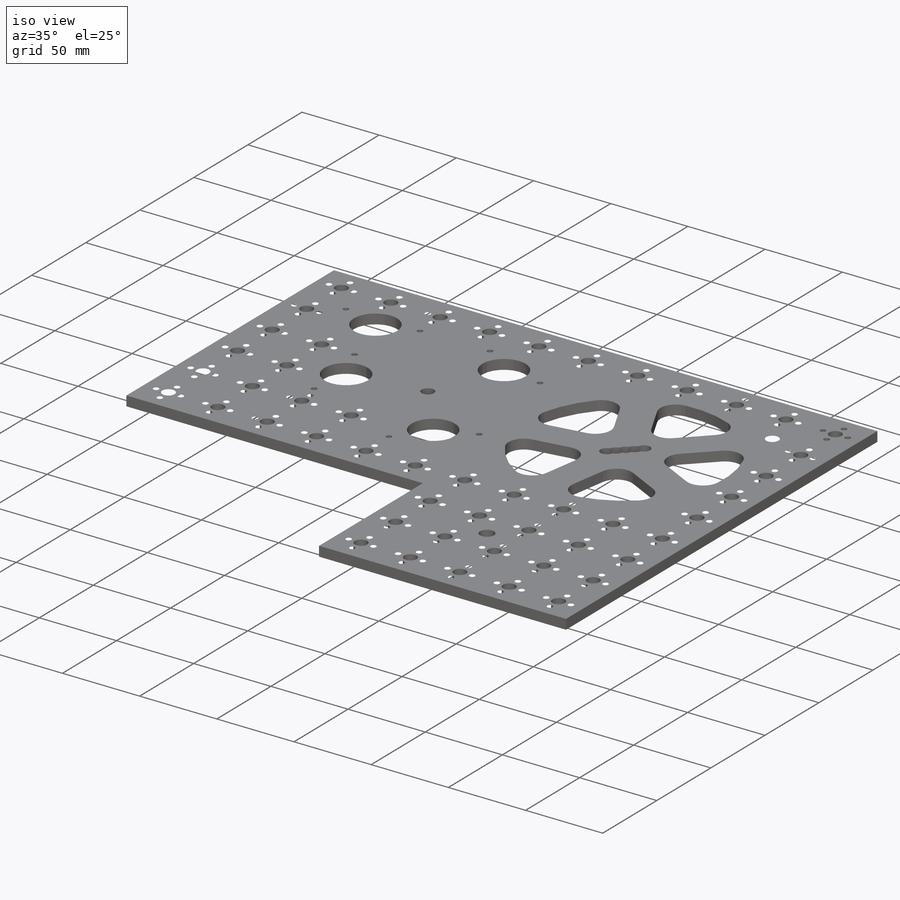
[diagram: iso view]
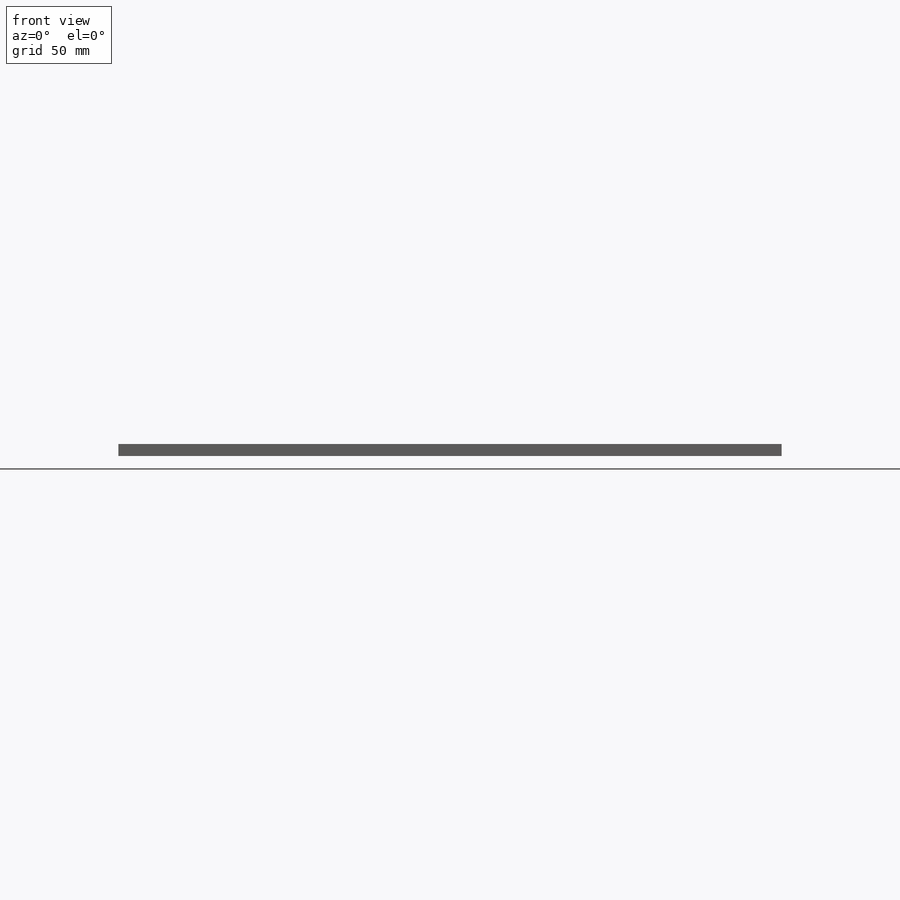
[diagram: front view]
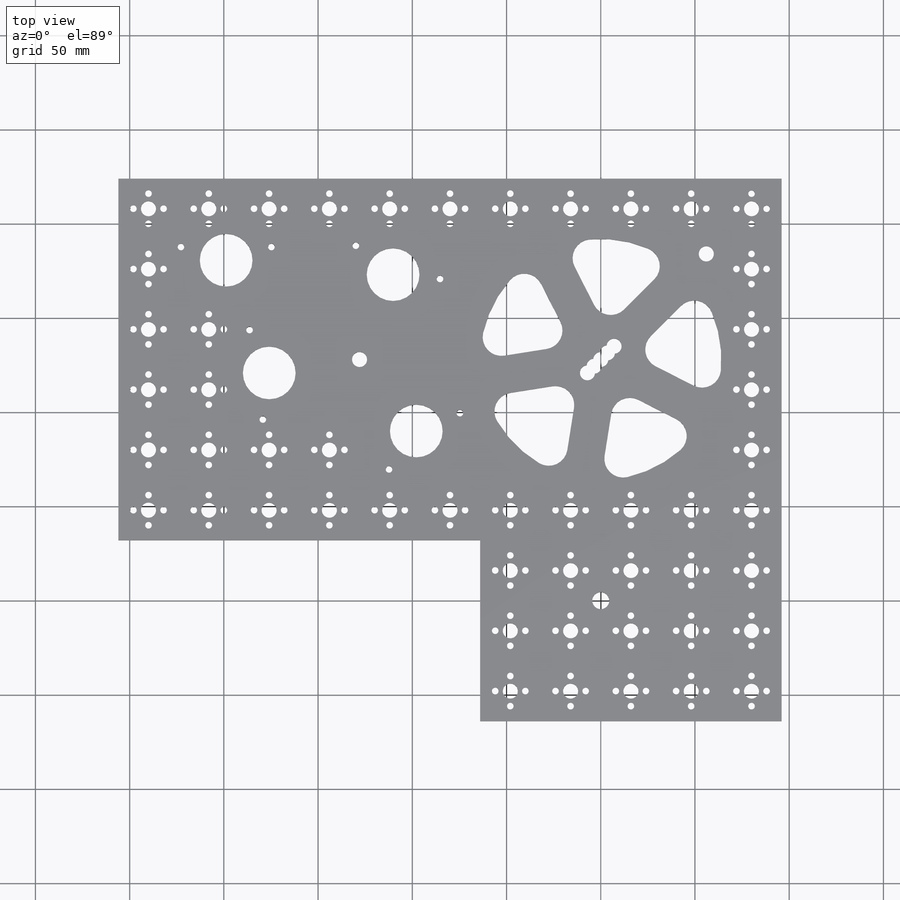
[diagram: top view]
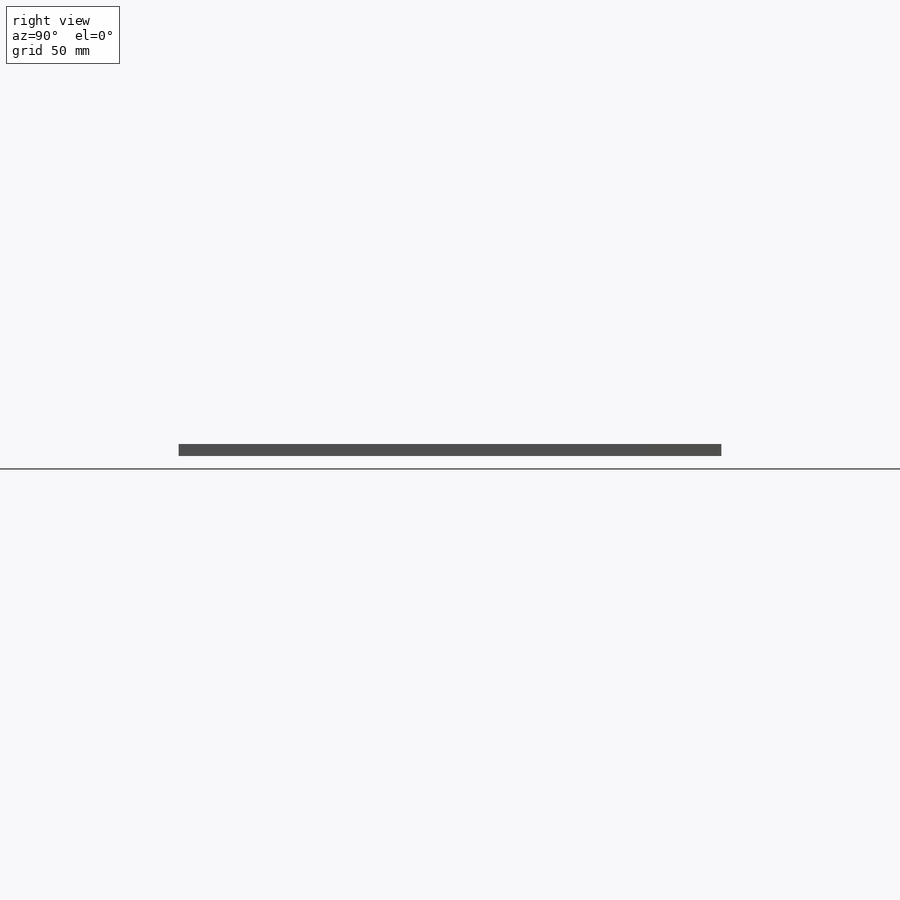
[diagram: right view]
SOLIDWORKS PART (.sldprt)
format: sldprt  version: not decoded by parser v0  size: 734,720 bytes
history: native  units: mm
features: sketch x10, cut_extrude x7, pattern_linear x3, material x1, extrude x1, fillet x1, pattern_circular x1 (+13 scaffold rows collapsed)
feature tree (37):
  scaffold x13  (default folders/planes/origin — collapsed)
  material  "Material <not specified>"
  sketch  "Sketch1"  dims[c1.D1=~16.170142mm c1.D2=~129.361138mm c1.D3=32.0mm c1.D4=64.0mm c1.D8=100.0mm c2.D3=32.0mm c2.D12=54.4mm c2.D5=~40.818521mm c3.D5=120.0deg c3.D6=~39.792612mm c4.D6=120.0deg c4.D7=128.0mm c4.D3=48.0mm c4.D9=80.0mm c4.D5=~28.054637mm c5.D5=120.0deg c5.D6=~20.53926mm c6.D6=120.0deg c6.D10=48.0mm c6.D11=6.5mm c6.D5=48.0mm c7.D5=120.0deg c7.D6=~13.471944mm c8.D6=120.0deg c8.D10=48.0mm]
  sketch  "Sketch2"  dims[D7=76.2mm D1=96.0mm D2=96.0mm D3=288.0mm D4=352.0mm D5=96.0mm D6=64.0mm]
  sketch  "Sketch3"  dims[D1=8.0mm D2=15.0mm]
  extrude  "Boss-Extrude1"  Depth=6.35mm
  sketch  "Sketch4"  dims[c1.D1=15.0mm c1.D2=8.0mm c1.D3=9.0mm c2.D1=28.0mm c2.D4=12.0mm c3.D1=28.0mm c3.D4=~28.593649mm c4.D4=45.0deg c4.D5=20.0mm c4.D6=4.0mm c5.D4=45.0deg]
  cut_extrude  "Cut-Extrude1"  [1 undecoded]
  cut_extrude  "Cut-Extrude6"  [1 undecoded]
  sketch  "Sketch4<3>"
  pattern_linear  "LPattern3"  Count1=3 Count2=3 Spacing1=5mm Spacing2=5mm
  sketch  "Sketch5"  dims[D3=3.5mm D1=48.0mm D2=7.0mm]
  cut_extrude  "Cut-Extrude2"  [1 undecoded]
  sketch  "Sketch6"  dims[c1.D1=10.0mm c1.D2=64.0mm c1.D3=10.0mm c2.D1=10.0mm c2.D4=~25.744189mm c3.D4=72.0deg]
  cut_extrude  "Cut-Extrude3"  [1 undecoded]
  fillet  "Fillet2"  Radius=10mm
  pattern_circular  "CirPattern2"  Count=5 Angle=360deg
  sketch  "Sketch7"  dims[D2=8.0mm D3=3.5mm D1=16.0mm D4=8.0mm D5=16.0mm]
  cut_extrude  "Cut-Extrude4"  [1 undecoded]
  sketch  "Sketch10"  dims[D2=3.5mm D1=8.0mm D3=4.0]
  cut_extrude  "Cut-Extrude5"  [1 undecoded]
  pattern_linear  "LPattern1"  Count1=11 Count2=9 Spacing1=32mm Spacing2=32mm
  pattern_linear  "LPattern2"  Count1=11 Count2=9 Spacing1=32mm Spacing2=32mm
  sketch  "Sketch12"  dims[D1=40.0mm]
  cut_extrude  "Cut-Extrude8"  [1 undecoded]
decode coverage: 15 of 23 modeling features carry decoded parameters
note: ~ marks probable driven/reference dimensions
note: 7 parameter values undecoded
summary: no parameter record found for 7 features
note: suppression state not decoded; provenance and decode notes live in map.json
